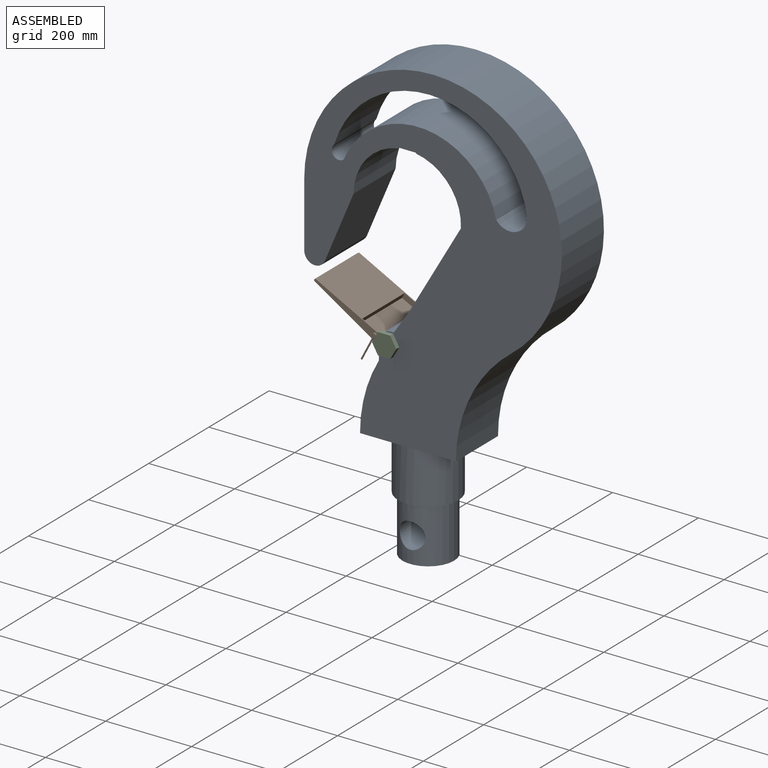
[diagram: assembled view]
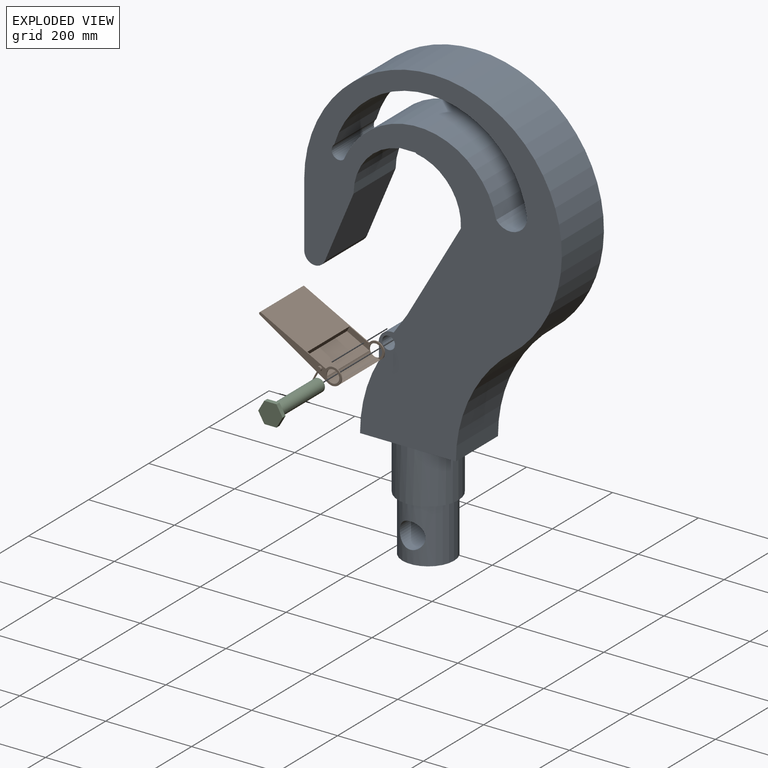
[diagram: exploded view]
GUIDED TOUR — MATED ASSEMBLY (Onshape document 583f2a653bdab0106734f1ce, AutoMate assembly 583f2a653bdab0106734f1ce_6a6dd12adc0b893d450ea803_03d3ba5206d52d6a56dff8d6_default)

This assembly has 3 components, labeled P0..P2 below (a component is one placed occurrence of a part; the same part can appear more than once), held together by 2 mates. A mate is a constraint between two components; its type names the relative motion it leaves free:
  CYLINDRICAL — leaves both rotation about and translation along the listed axis free,
  PIN_SLOT — leaves rotation about the listed axis plus translation along a slot free.
Axis/direction vectors are unit vectors and 'through' points are millimeter coordinates, both in the assembly's world frame.

MATES
  1. CYLINDRICAL "Cylindrical 1": P1 <-> P0, axis (0.000, 1.000, 0.000) through (-794.43, -152.64, 199.66) mm
  2. PIN_SLOT "Pin slot 1": P2 <-> P0, axis (0.000, 1.000, 0.000) through (-794.43, -82.64, 199.66) mm

ASSEMBLY ORDER
  1. P0 — the base component [order heuristic]
  2. P1 — core [order heuristic]
  3. P2 [order verified]
Order-tag legend:
  [order verified] — this step's position reverses a verified removal order: the component was checked to insert without passing through the ones already placed.
  [order heuristic] — the first 2 components form the assembly's core: parts whose collision-free extraction could not be verified, listed in mate-graph order.

Of the 3 components, 2 carry the full construction recipe — the FeatureScript program that regenerates the part's solid from scratch; the rest are supplied as boundary geometry only.
Each toured component is shown spotlighted twice — in the assembled view, then in the exploded view, where a leader line traces a displaced component back to its assembled socket (saturated green if recipe-attached, orange if geometry-only; every other component desaturated gray) — followed by its recipe or geometry summary and the mates that hold it.
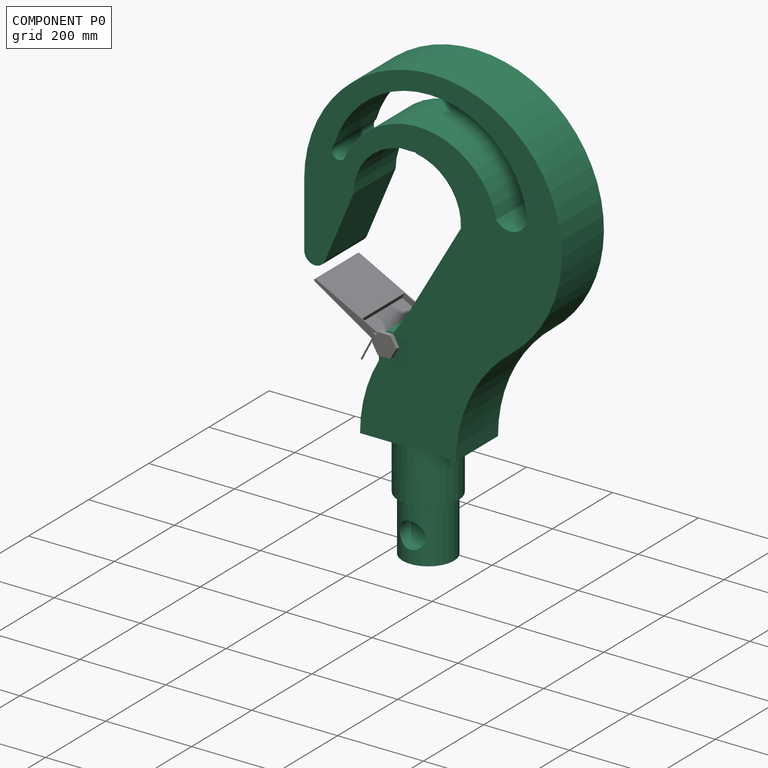
[diagram: component P0 — assembled]
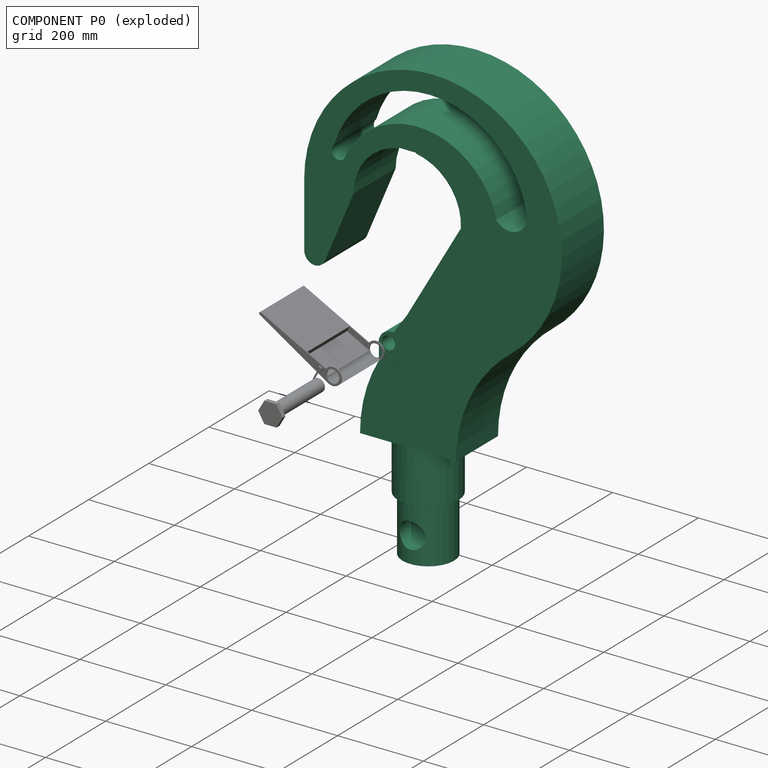
[diagram: component P0 — exploded]
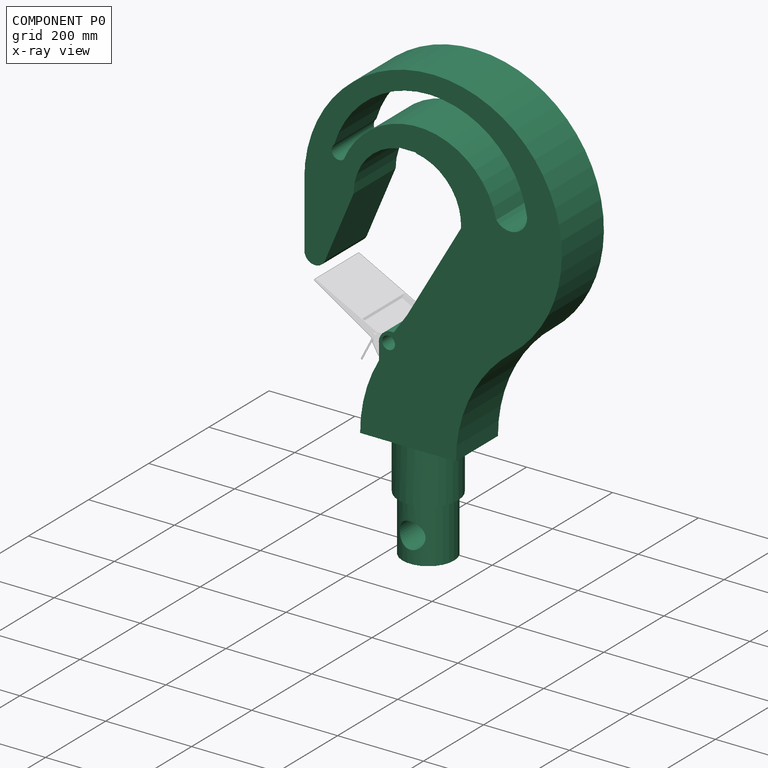
[diagram: component P0 — x-ray view]
COMPONENT P0 — recipe-attached (CADFS 00357257, mesh-verified: the recipe's output STEP matches this component's geometry to below the mesh-comparison resolution (tessellation chordal tolerance ~1.83 mm)).
Held by: CYLINDRICAL mate "Cylindrical 1" to P1; PIN_SLOT mate "Pin slot 1" to P2.
Construction recipe (FeatureScript — the CAD program that rebuilds this solid; sketch coordinates are in the units given by the * unit suffixes, e.g. mm):

FeatureScript 1511;
import(path : "onshape/std/geometry.fs", version : "1511.0");
import(path : "onshape/std/common.fs", version : "1511.0");
const mm = millimeter;
const VERTEX = EntityType.VERTEX;
const EDGE = EntityType.EDGE;
const FACE = EntityType.FACE;
const BODY = EntityType.BODY;
function v(x, y){return vector(x, y);}
function OD(order){return orderDisambiguation(order);}
function OSD(set){return originalSetDisambiguation(set);}
function TD(topology){return topologyDisambiguation(topology);}
function TDD(query){return trueDependencyDisambiguation(query);}
function sQuery(a, b, c) {return sketchEntityQuery(a, b, c);}

annotation { "Feature Type Name" : "Feature", "Feature Type Description" : "" }
export const myFeature = defineFeature(function(context is Context, id is Id, definition is map)
    precondition{}
    {
        {
            var Q0;
            Q0=qCreatedBy(makeId("Front.planeOp"),FACE);
            var sketch = newSketch(context, id + "F0", { "sketchPlane" : qUnion([Q0])});
            skArc(sketch, "E0", {"start": v(242.51, 261.9) * mm, "mid": v(147.34, 146.03) * mm, "end": v(113.28, 0) * mm});
            skArc(sketch, "E1", {"start": v(-66.06, 164.53) * mm, "mid": v(-98.83, 85.15) * mm, "end": v(-110, 0) * mm});
            skLineSegment(sketch, "E2", {"start": v(0, 898.51) * mm, "end": v(0, -968.16) * mm, "construction": true});
            skArc(sketch, "E3", {"start": v(124.84, 493.61) * mm, "mid": v(97.24, 578.55) * mm, "end": v(20, 623.39) * mm});
            skArc(sketch, "E4", {"start": v(242.51, 261.9) * mm, "mid": v(192.75, 769.03) * mm, "end": v(-240, 500) * mm});
            skLineSegment(sketch, "E5", {"start": v(124.84, 493.61) * mm, "end": v(0, 278.41) * mm});
            skLineSegment(sketch, "E6", {"start": v(-607.5, 0) * mm, "end": v(1252.05, 0) * mm, "construction": true});
            skLineSegment(sketch, "E7", {"start": v(0, 500) * mm, "end": v(-349.97, 500) * mm, "construction": true});
            skLineSegment(sketch, "E8", {"start": v(-240, 500) * mm, "end": v(-125, 500) * mm});
            skArc(sketch, "E9", {"start": v(-240, 350) * mm, "mid": v(-219.93, 325.5) * mm, "end": v(-191.94, 340.33) * mm});
            skLineSegment(sketch, "E10", {"start": v(-240, 500) * mm, "end": v(-240, 350) * mm});
            skLineSegment(sketch, "E11", {"start": v(-125, 500) * mm, "end": v(-191.94, 340.33) * mm});
            skLineSegment(sketch, "E12", {"start": v(-110, 0) * mm, "end": v(113.28, 0) * mm});
            skPoint(sketch, "E13.oppositeSnap0", {"position": v(20, 623.39) * mm});
            skLineSegment(sketch, "E13.top", {"start": v(-20, 624.95) * mm, "end": v(20, 624.95) * mm});
            skLineSegment(sketch, "E13.left", {"start": v(-20, 623.39) * mm, "end": v(-20, 624.95) * mm});
            skLineSegment(sketch, "E13.right", {"start": v(20, 623.39) * mm, "end": v(20, 624.95) * mm});
            skArc(sketch, "E14.trimOffspring", {"start": v(-20, 623.39) * mm, "mid": v(-95.2, 581) * mm, "end": v(-125, 500) * mm});
            skLineSegment(sketch, "E15.trimOffspring", {"start": v(55.5, 612) * mm, "end": v(68.67, 612) * mm, "construction": true});
            skLineSegment(sketch, "E16", {"start": v(-66.06, 164.53) * mm, "end": v(-66.06, 197.07) * mm});
            skArc(sketch, "E17", {"start": v(-31.67, 232.57) * mm, "mid": v(-58.2, 223.86) * mm, "end": v(-66.06, 197.07) * mm});
            skLineSegment(sketch, "E18", {"start": v(-31.67, 232.57) * mm, "end": v(0, 278.41) * mm});
            skSolve(sketch);
        }
        {
            var Q0;
            Q0=qCreatedBy(makeId("Front.planeOp"),FACE);
            var sketch = newSketch(context, id + "F1", { "sketchPlane" : qUnion([Q0])});
            skLineSegment(sketch, "E19", {"start": v(-60, -250) * mm, "end": v(0, -250) * mm});
            skLineSegment(sketch, "E20", {"start": v(-70, 0) * mm, "end": v(0, 0) * mm});
            skLineSegment(sketch, "E21", {"start": v(0, 0) * mm, "end": v(0, -250) * mm});
            skLineSegment(sketch, "E22", {"start": v(-70, -120) * mm, "end": v(-70, 0) * mm});
            skLineSegment(sketch, "E23", {"start": v(-70, -120) * mm, "end": v(-60, -120) * mm});
            skLineSegment(sketch, "E24", {"start": v(-60, -120) * mm, "end": v(-60, -250) * mm});
            skSolve(sketch);
        }
        {
            var Q0;
            Q0=qSketchRegion(id+"F1",true);
            var Q1;
            Q1=sQuery(id+"F1.wireOp",EDGE,"E21");
            revolve(context, id + "F2", {"entities" : qUnion([Q0]), "axis" : qUnion([Q1]), "revolveType" : RevolveType.FULL});
        }
        {
            var Q0;
            Q0=makeQuery(id+"F0.imprint","IMPRINT",FACE,{"disambiguationData":[TD([[makeQuery(id+"F0.imprint","IMPRINT",EDGE,{"derivedFrom":sQuery(id+"F0.wireOp",EDGE,"E0")}),-1.0]])]});
            var Q1;
            Q1=makeQuery(id+"F0.imprint","IMPRINT",FACE,{"disambiguationData":[TD([[makeQuery(id+"F0.imprint","IMPRINT",EDGE,{"derivedFrom":sQuery(id+"F0.wireOp",EDGE,"E8")}),-1.0]])]});
            extrude(context, id + "F3", {"entities" : qUnion([Q0, Q1]), "operationType" : NewBodyOperationType.ADD, "endBound" : BoundingType.SYMMETRIC, "depth" : 140 * mm});
        }
        {
            var Q0;
            Q0=qCreatedBy(makeId("Front.planeOp"),FACE);
            var sketch = newSketch(context, id + "F4", { "sketchPlane" : qUnion([Q0])});
            skCircle(sketch, "E25", {"center": v(0, -190) * mm, "radius": 30 * mm});
            skSolve(sketch);
        }
        {
            var Q0;
            Q0=qSketchRegion(id+"F4",true);
            extrude(context, id + "F5", {"entities" : qUnion([Q0]), "operationType" : NewBodyOperationType.REMOVE, "endBound" : BoundingType.SYMMETRIC, "depth" : 224 * mm});
        }
        {
            var Q0;
            Q0=makeQuery(id+"F3.opExtrude","CAP_FACE",FACE,{"disambiguationData":[OSD([sQuery(id+"F0.wireOp",EDGE,"E0"),sQuery(id+"F0.wireOp",EDGE,"E1"),sQuery(id+"F0.wireOp",EDGE,"E3"),sQuery(id+"F0.wireOp",EDGE,"E4"),sQuery(id+"F0.wireOp",EDGE,"E5"),sQuery(id+"F0.wireOp",EDGE,"E9"),sQuery(id+"F0.wireOp",EDGE,"E10"),sQuery(id+"F0.wireOp",EDGE,"E11"),sQuery(id+"F0.wireOp",EDGE,"E12"),sQuery(id+"F0.wireOp",EDGE,"E13.top"),sQuery(id+"F0.wireOp",EDGE,"E13.left"),sQuery(id+"F0.wireOp",EDGE,"E13.right"),sQuery(id+"F0.wireOp",EDGE,"E14.trimOffspring")])],"isStart":false});
            var sketch = newSketch(context, id + "F6", { "sketchPlane" : qUnion([Q0])});
            skCircle(sketch, "E26", {"center": v(-43.48, 207.78) * mm, "radius": 15 * mm});
            skSolve(sketch);
        }
        {
            var Q0;
            Q0=qSketchRegion(id+"F6",true);
            var Q1;
            Q1=makeQuery(id+"F6.imprint","IMPRINT",FACE,{"disambiguationData":[TD([[makeQuery(id+"F6.imprint","IMPRINT",EDGE,{"derivedFrom":sQuery(id+"F6.wireOp",EDGE,"E26")}),1.0]])]});
            extrude(context, id + "F7", {"entities" : qUnion([Q0, Q1]), "operationType" : NewBodyOperationType.REMOVE, "endBound" : BoundingType.SYMMETRIC, "oppositeDirection" : true, "depth" : 326 * mm});
        }
        {
            var Q0;
            Q0=makeQuery(id+"F3.opExtrude","CAP_FACE",FACE,{"disambiguationData":[OSD([sQuery(id+"F0.wireOp",EDGE,"E0"),sQuery(id+"F0.wireOp",EDGE,"E1"),sQuery(id+"F0.wireOp",EDGE,"E3"),sQuery(id+"F0.wireOp",EDGE,"E4"),sQuery(id+"F0.wireOp",EDGE,"E5"),sQuery(id+"F0.wireOp",EDGE,"E9"),sQuery(id+"F0.wireOp",EDGE,"E10"),sQuery(id+"F0.wireOp",EDGE,"E11"),sQuery(id+"F0.wireOp",EDGE,"E12"),sQuery(id+"F0.wireOp",EDGE,"E13.top"),sQuery(id+"F0.wireOp",EDGE,"E13.left"),sQuery(id+"F0.wireOp",EDGE,"E13.right"),sQuery(id+"F0.wireOp",EDGE,"E14.trimOffspring"),sQuery(id+"F0.wireOp",EDGE,"E16"),sQuery(id+"F0.wireOp",EDGE,"E17"),sQuery(id+"F0.wireOp",EDGE,"E18")])],"isStart":false});
            var sketch = newSketch(context, id + "F8", { "sketchPlane" : qUnion([Q0])});
            skArc(sketch, "E27", {"start": v(279.23, 557.56) * mm, "mid": v(68.17, 754.81) * mm, "end": v(-170.1, 591.46) * mm});
            skArc(sketch, "E28", {"start": v(207.24, 533.56) * mm, "mid": v(41.28, 680) * mm, "end": v(-148.13, 565.5) * mm});
            skArc(sketch, "E29", {"start": v(-170.1, 591.46) * mm, "mid": v(-172, 567.58) * mm, "end": v(-148.13, 565.5) * mm});
            skArc(sketch, "E30", {"start": v(207.24, 533.56) * mm, "mid": v(251.88, 519.64) * mm, "end": v(279.23, 557.56) * mm});
            skSolve(sketch);
        }
        {
            var Q0;
            Q0 = qSketchRegion(id + "F8", true);
            var Q1;
            Q1=makeQuery(id+"F8.imprint","IMPRINT",FACE,{"disambiguationData":[TD([[makeQuery(id+"F8.imprint","IMPRINT",EDGE,{"derivedFrom":sQuery(id+"F8.wireOp",EDGE,"E27")}),1.0]])]});
            extrude(context, id + "F9", {"entities" : qUnion([Q0, Q1]), "operationType" : NewBodyOperationType.REMOVE, "oppositeDirection" : true, "depth" : 150 * mm});
        }
    });
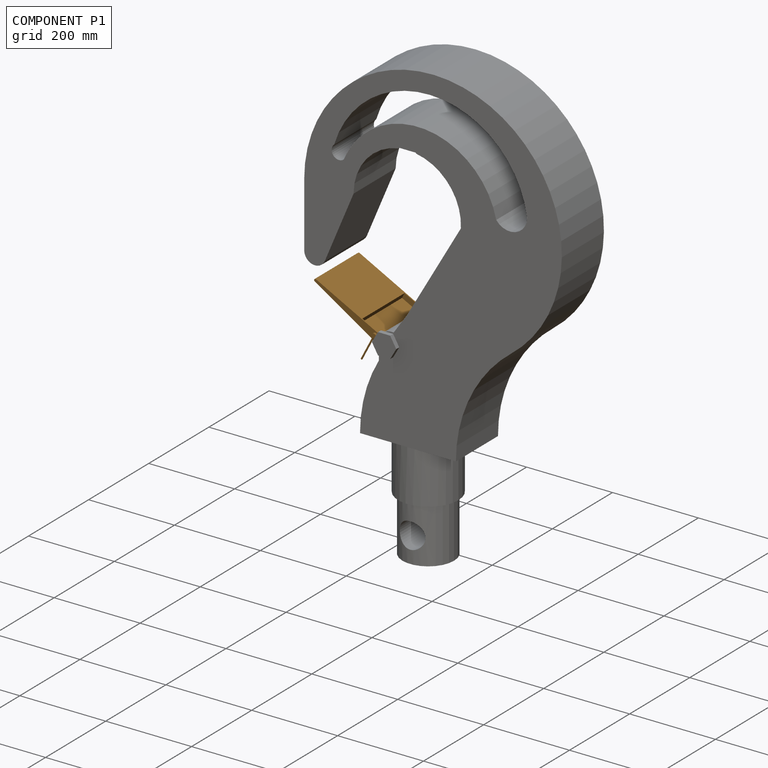
[diagram: component P1 — assembled]
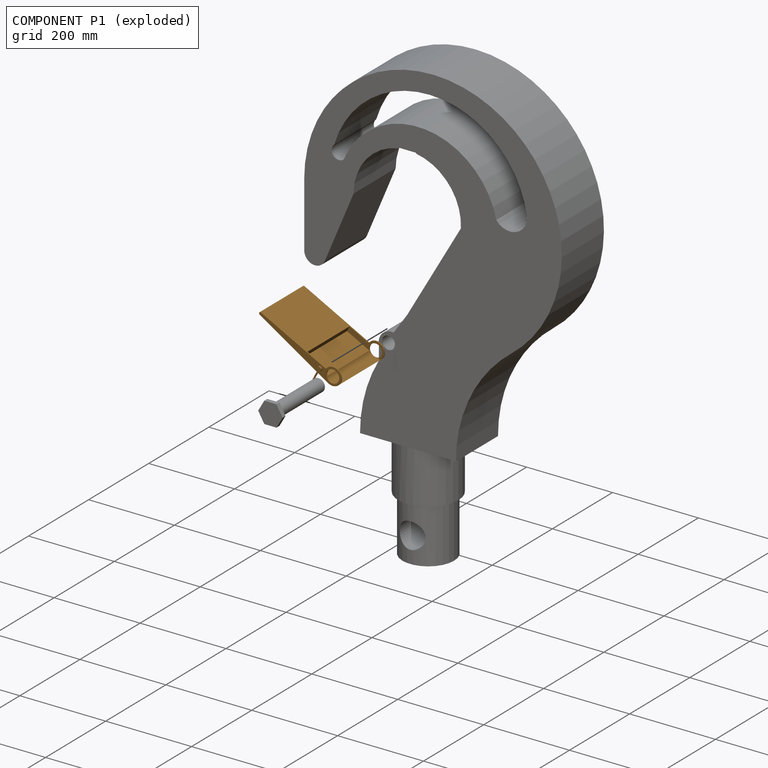
[diagram: component P1 — exploded]
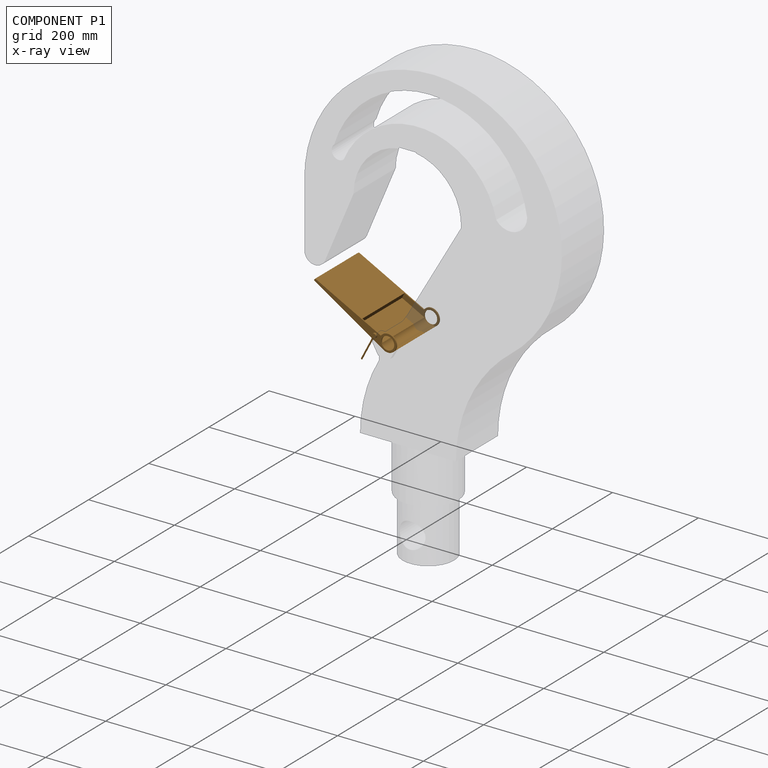
[diagram: component P1 — x-ray view]
COMPONENT P1 — geometry summary (no construction recipe available for this part):
  bounding box: 213.0 x 150.0 x 90.0 mm
  B-rep topology: 1 solid, 18 faces, 94 edges
  volume: 282141 mm^3 (10% of its bounding box)
Held by: CYLINDRICAL mate "Cylindrical 1" to P0.
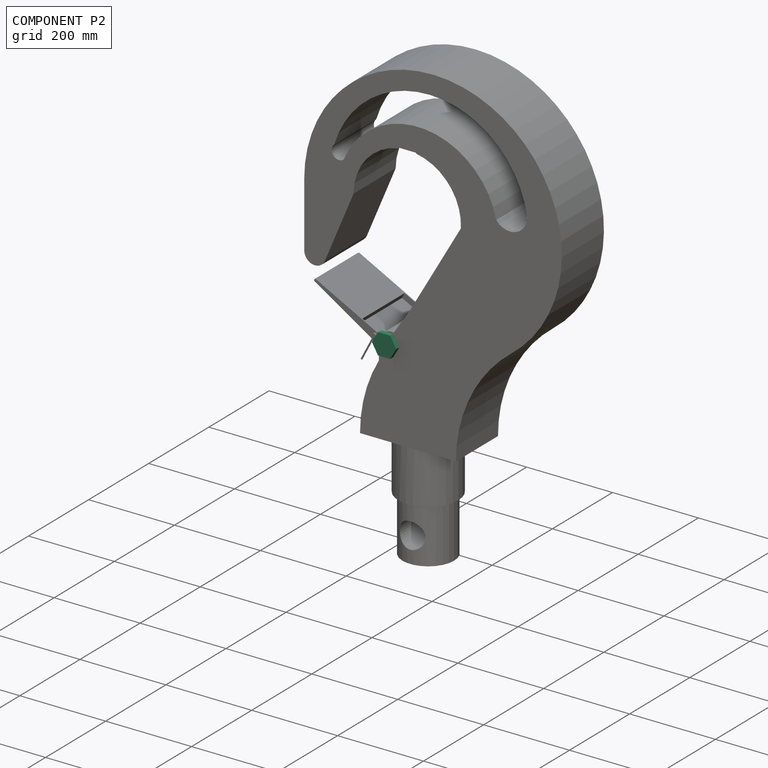
[diagram: component P2 — assembled]
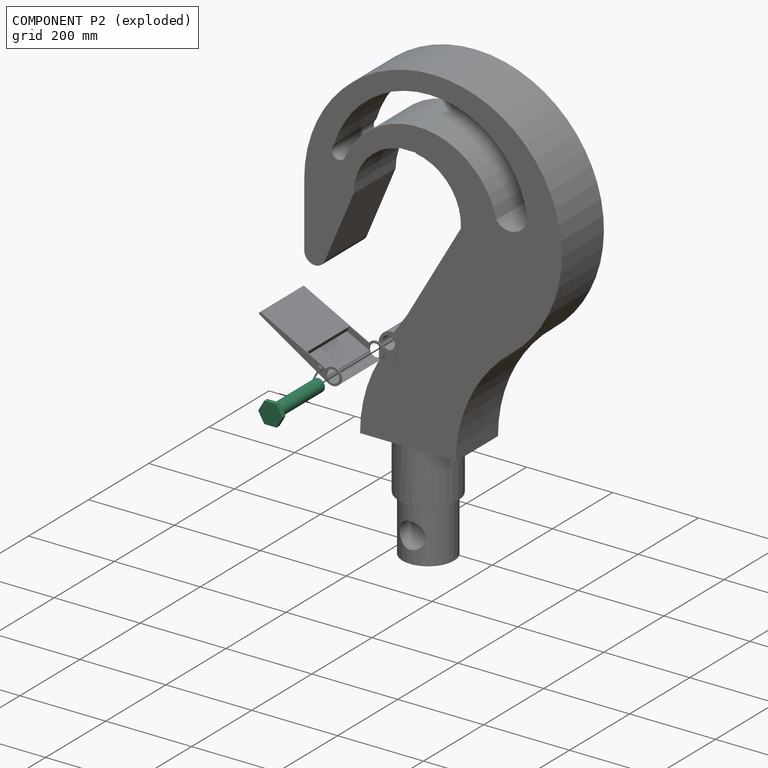
[diagram: component P2 — exploded]
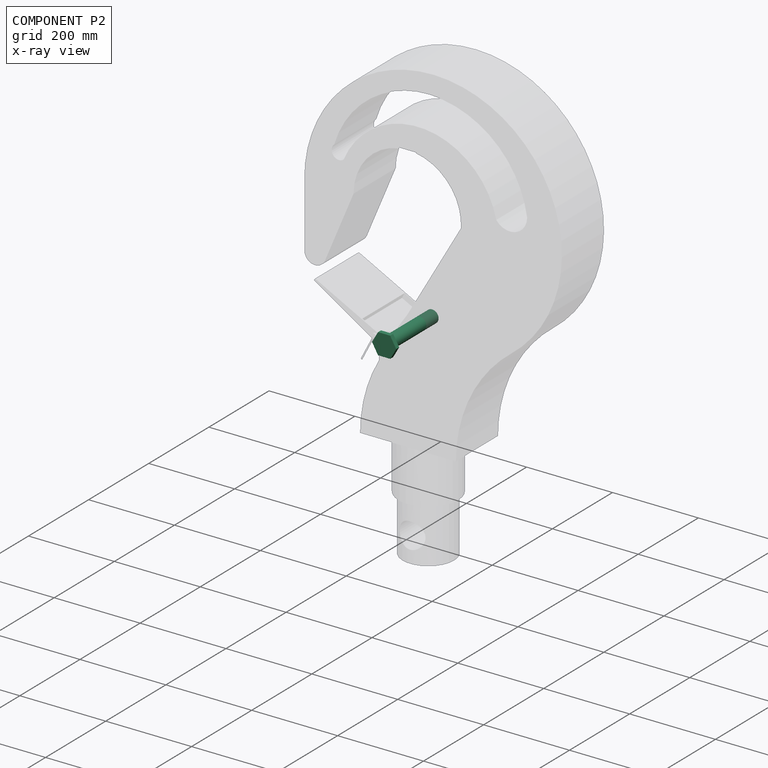
[diagram: component P2 — x-ray view]
COMPONENT P2 — recipe-attached (CADFS 00357259, mesh-verified: the recipe's output STEP matches this component's geometry to below the mesh-comparison resolution (tessellation chordal tolerance ~0.265 mm)).
Held by: PIN_SLOT mate "Pin slot 1" to P0.
Construction recipe (FeatureScript — the CAD program that rebuilds this solid; sketch coordinates are in the units given by the * unit suffixes, e.g. mm):

FeatureScript 1511;
import(path : "onshape/std/geometry.fs", version : "1511.0");
import(path : "onshape/std/common.fs", version : "1511.0");
const mm = millimeter;
const VERTEX = EntityType.VERTEX;
const EDGE = EntityType.EDGE;
const FACE = EntityType.FACE;
const BODY = EntityType.BODY;
function v(x, y){return vector(x, y);}
function OD(order){return orderDisambiguation(order);}
function OSD(set){return originalSetDisambiguation(set);}
function TD(topology){return topologyDisambiguation(topology);}
function TDD(query){return trueDependencyDisambiguation(query);}
function sQuery(a, b, c) {return sketchEntityQuery(a, b, c);}

annotation { "Feature Type Name" : "Feature", "Feature Type Description" : "" }
export const myFeature = defineFeature(function(context is Context, id is Id, definition is map)
    precondition{}
    {
        {
            var Q0;
            Q0=qCreatedBy(makeId("Front.planeOp"),FACE);
            var sketch = newSketch(context, id + "F0", { "sketchPlane" : qUnion([Q0])});
            skCircle(sketch, "E0", {"center": v(0, 0) * mm, "radius": 15 * mm});
            skSolve(sketch);
        }
        {
            var Q0;
            Q0=makeQuery(id+"F0.imprint","IMPRINT",FACE,{"disambiguationData":[TD([[makeQuery(id+"F0.imprint","IMPRINT",EDGE,{"derivedFrom":sQuery(id+"F0.wireOp",EDGE,"E0")}),1.0]])]});
            extrude(context, id + "F1", {"entities" : qUnion([Q0]), "endBound" : BoundingType.SYMMETRIC, "depth" : 150 * mm});
        }
        {
            var Q0;
            Q0=makeQuery(id+"F1.opExtrude","CAP_FACE",FACE,{"disambiguationData":[OSD([sQuery(id+"F0.wireOp",EDGE,"E0")])],"isStart":false});
            var sketch = newSketch(context, id + "F2", { "sketchPlane" : qUnion([Q0])});
            skCircle(sketch, "E1.cCircle", {"center": v(0, 0) * mm, "radius": 24.57 * mm, "construction": true});
            skLineSegment(sketch, "E1.0", {"start": v(14.18, 24.57) * mm, "end": v(28.37, 0) * mm});
            skLineSegment(sketch, "E1.1", {"start": v(28.37, 0) * mm, "end": v(14.18, -24.57) * mm});
            skLineSegment(sketch, "E1.2", {"start": v(14.18, -24.57) * mm, "end": v(-14.18, -24.57) * mm});
            skLineSegment(sketch, "E1.3", {"start": v(-14.18, -24.57) * mm, "end": v(-28.37, 0) * mm});
            skLineSegment(sketch, "E1.4", {"start": v(-28.37, 0) * mm, "end": v(-14.18, 24.57) * mm});
            skLineSegment(sketch, "E1.5", {"start": v(-14.18, 24.57) * mm, "end": v(14.18, 24.57) * mm});
            skPoint(sketch, "E1.0.midPoint", {"position": v(21.28, 12.28) * mm});
            skSolve(sketch);
        }
        {
            var Q0;
            Q0=qSketchRegion(id+"F2",true);
            extrude(context, id + "F3", {"entities" : qUnion([Q0]), "operationType" : NewBodyOperationType.ADD, "depth" : 10 * mm});
        }
    });
PROVENANCE & LICENSES
Assembly (occurrences, transforms, mates, per-part STEP geometry): AutoMate dataset, Zenodo record 7776208, CC0.
Construction recipes: CADFS (HuggingFace VladPyatov/CADFS, CC-BY-4.0, layered over the ABC dataset), FeatureScript reconstruction programs keyed by ABC model id.
Join: ABC meta listings map ABC model id -> Onshape documentId; within a shared document, parts are matched by geometric signature (bounding-box dims + volume at 0.1% relative tolerance, exact B-rep face/solid counts).
Verification: 2 of this assembly's 3 components carry a recipe attachment, and every attachment is mesh-verified: the CADFS STEP and the AutoMate member STEP were compared as meshes in their shared local frame (symmetric sampled-point-to-mesh distance); worst across the 2 attachments: below the mesh-comparison resolution (tessellation chordal tolerance ~1.83 mm) on a 1217 mm part.
Renders: orthographic iso camera (az 35 / el 25); the floor grid conveys scale (grid pitch printed in each image; no ruler). In the exploded view each component is displaced by its stored offset vector: the offsets alone carry the explosion direction (mate normal/axis signs are not orientation cues and do not encode it), and separation distances are assigned per mate-chain, not proportionally to assembly-order depth.
